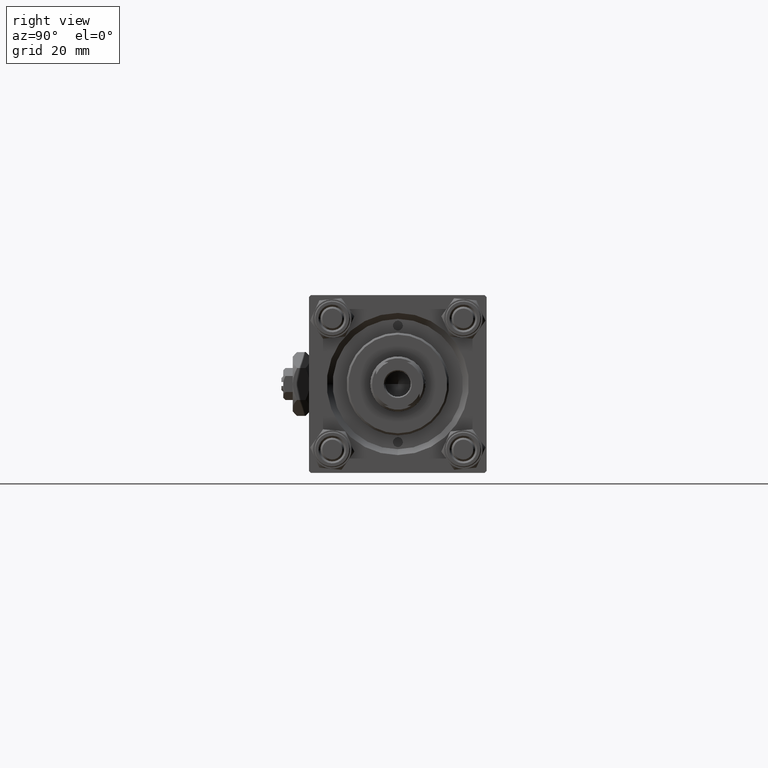
[diagram: clean part render]
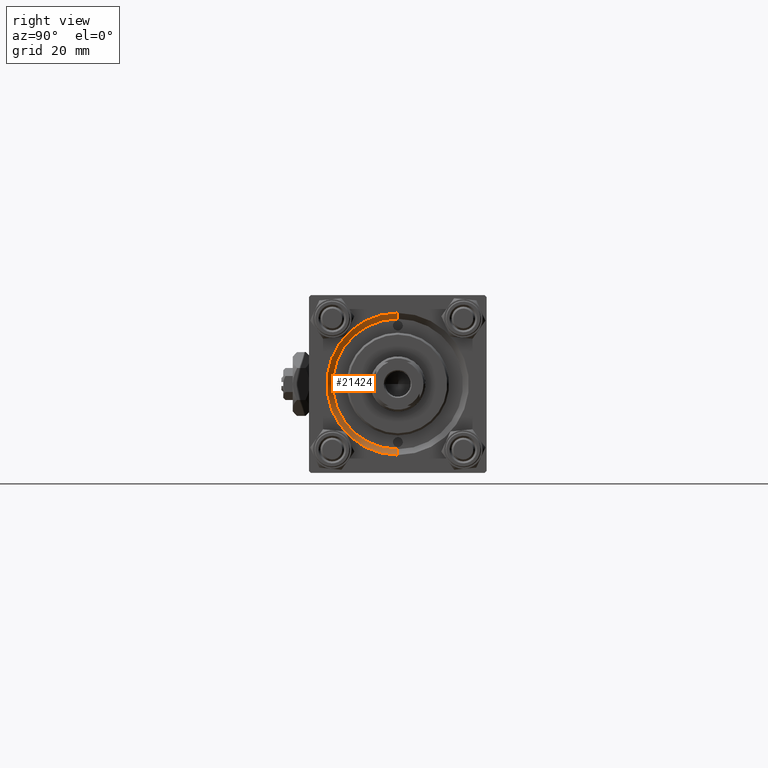
[diagram: same view with one face highlighted and labeled with its STEP entity id]
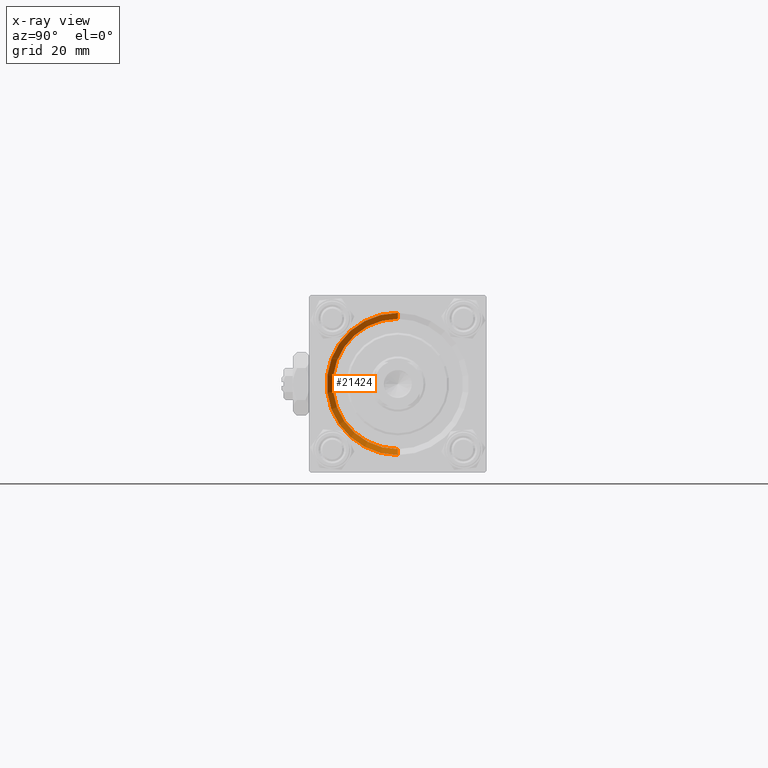
[diagram: x-ray of the same camera — body ghosted, the highlighted face saturated]
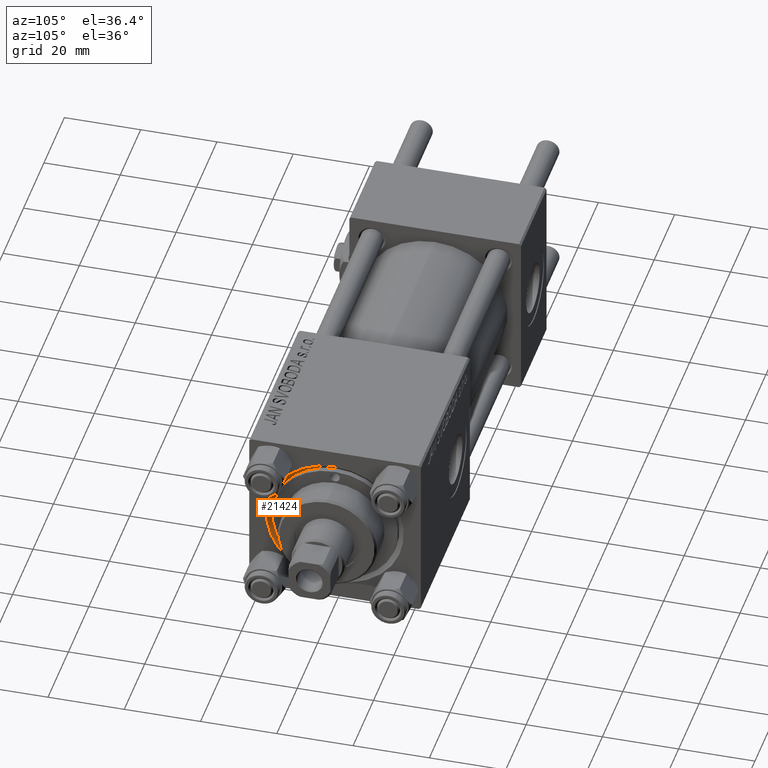
[diagram: same view with one face highlighted and labeled with its STEP entity id]
A machine part, right view. The second image highlights one B-rep face of the part: STEP entity #21424.
The next image is the same camera in x-ray: the body ghosted, the highlighted face saturated — about 0% of this face is hidden behind the body in this view.
A second angle (auxiliary view) of the same face is appended — the face is thin or edge-on in the first view.
In plain terms, the highlighted conical surface has half-angle 45 deg.
Its self-contained STEP definition (entity closure, byte-faithful):
#3983 = EDGE_LOOP ( 'NONE', ( #37631, #10545, #34540, #40832 ) ) ;
#4092 = VECTOR ( 'NONE', #31099, 1000.000000000000114 ) ;
#5818 = CIRCLE ( 'NONE', #49215, 16.50000000000000000 ) ;
#8074 = DIRECTION ( 'NONE',  ( 0.000000000000000000, 0.000000000000000000, 1.000000000000000000 ) ) ;
#10476 = CARTESIAN_POINT ( 'NONE',  ( 121.5000000000000142, 0.000000000000000000, 0.000000000000000000 ) ) ;
#10545 = ORIENTED_EDGE ( 'NONE', *, *, #25553, .T. ) ;
#11248 = LINE ( 'NONE', #51473, #4092 ) ;
#15673 = CONICAL_SURFACE ( 'NONE', #50722, 16.50000000000000000, 0.7853981633974482790 ) ;
#16385 = CARTESIAN_POINT ( 'NONE',  ( 121.5000000000000142, 0.000000000000000000, -16.50000000000000000 ) ) ;
#17293 = CARTESIAN_POINT ( 'NONE',  ( 123.0000000000000142, 0.000000000000000000, -18.00000000000000355 ) ) ;
#17614 = VERTEX_POINT ( 'NONE', #49316 ) ;
#20113 = CARTESIAN_POINT ( 'NONE',  ( 123.0000000000000142, 0.000000000000000000, 0.000000000000000000 ) ) ;
#20384 = EDGE_CURVE ( 'NONE', #45609, #20572, #44372, .T. ) ;
#20572 = VERTEX_POINT ( 'NONE', #17293 ) ;
#21424 = ADVANCED_FACE ( 'NONE', ( #43892 ), #15673, .F. ) ;
#23506 = DIRECTION ( 'NONE',  ( 0.000000000000000000, 0.000000000000000000, -1.000000000000000000 ) ) ;
#25553 = EDGE_CURVE ( 'NONE', #17614, #31376, #11248, .T. ) ;
#28187 = DIRECTION ( 'NONE',  ( 1.000000000000000000, 0.000000000000000000, 0.000000000000000000 ) ) ;
#29218 = CIRCLE ( 'NONE', #39258, 18.00000000000000355 ) ;
#31099 = DIRECTION ( 'NONE',  ( 0.7071067811865474617, 8.659560562354932858E-17, 0.7071067811865474617 ) ) ;
#31334 = CARTESIAN_POINT ( 'NONE',  ( 121.5000000000000142, 0.000000000000000000, 0.000000000000000000 ) ) ;
#31376 = VERTEX_POINT ( 'NONE', #35501 ) ;
#31871 = DIRECTION ( 'NONE',  ( -1.000000000000000000, 0.000000000000000000, -0.000000000000000000 ) ) ;
#34540 = ORIENTED_EDGE ( 'NONE', *, *, #47238, .F. ) ;
#35501 = CARTESIAN_POINT ( 'NONE',  ( 123.0000000000000142, 2.204364238465235822E-15, 18.00000000000000355 ) ) ;
#37631 = ORIENTED_EDGE ( 'NONE', *, *, #46621, .F. ) ;
#39258 = AXIS2_PLACEMENT_3D ( 'NONE', #20113, #31871, #8074 ) ;
#40832 = ORIENTED_EDGE ( 'NONE', *, *, #20384, .F. ) ;
#41861 = DIRECTION ( 'NONE',  ( 0.000000000000000000, 0.000000000000000000, 1.000000000000000000 ) ) ;
#43892 = FACE_OUTER_BOUND ( 'NONE', #3983, .T. ) ;
#44372 = LINE ( 'NONE', #16385, #45678 ) ;
#44621 = DIRECTION ( 'NONE',  ( 0.7071067811865474617, 0.000000000000000000, -0.7071067811865474617 ) ) ;
#45609 = VERTEX_POINT ( 'NONE', #48873 ) ;
#45678 = VECTOR ( 'NONE', #44621, 1000.000000000000114 ) ;
#46621 = EDGE_CURVE ( 'NONE', #17614, #45609, #5818, .T. ) ;
#47238 = EDGE_CURVE ( 'NONE', #20572, #31376, #29218, .T. ) ;
#48873 = CARTESIAN_POINT ( 'NONE',  ( 121.5000000000000142, 0.000000000000000000, -16.50000000000000000 ) ) ;
#49215 = AXIS2_PLACEMENT_3D ( 'NONE', #10476, #50441, #41861 ) ;
#49316 = CARTESIAN_POINT ( 'NONE',  ( 121.5000000000000142, 2.020667218593133100E-15, 16.50000000000000000 ) ) ;
#50441 = DIRECTION ( 'NONE',  ( 1.000000000000000000, 0.000000000000000000, 0.000000000000000000 ) ) ;
#50722 = AXIS2_PLACEMENT_3D ( 'NONE', #31334, #28187, #23506 ) ;
#51473 = CARTESIAN_POINT ( 'NONE',  ( 121.5000000000000142, 2.020667218593133100E-15, 16.50000000000000000 ) ) ;